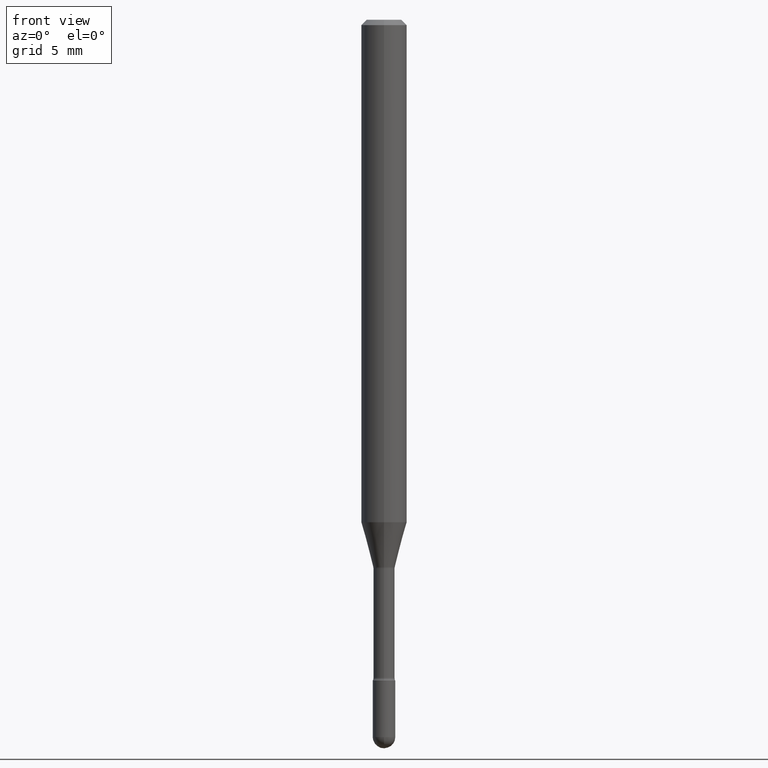
[diagram: clean part render]
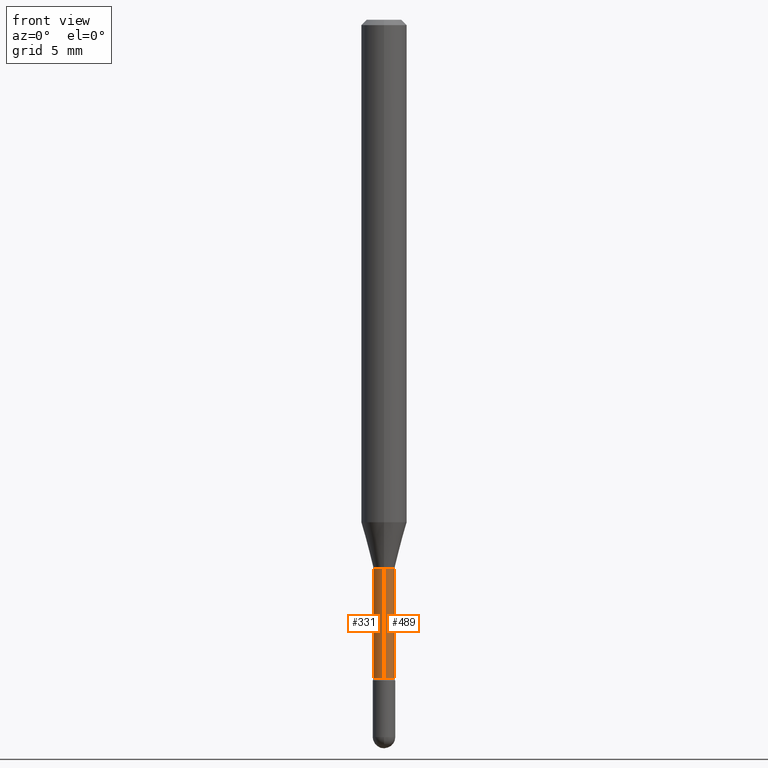
[diagram: same view with one multi-face feature highlighted, each face labeled with its STEP entity id]
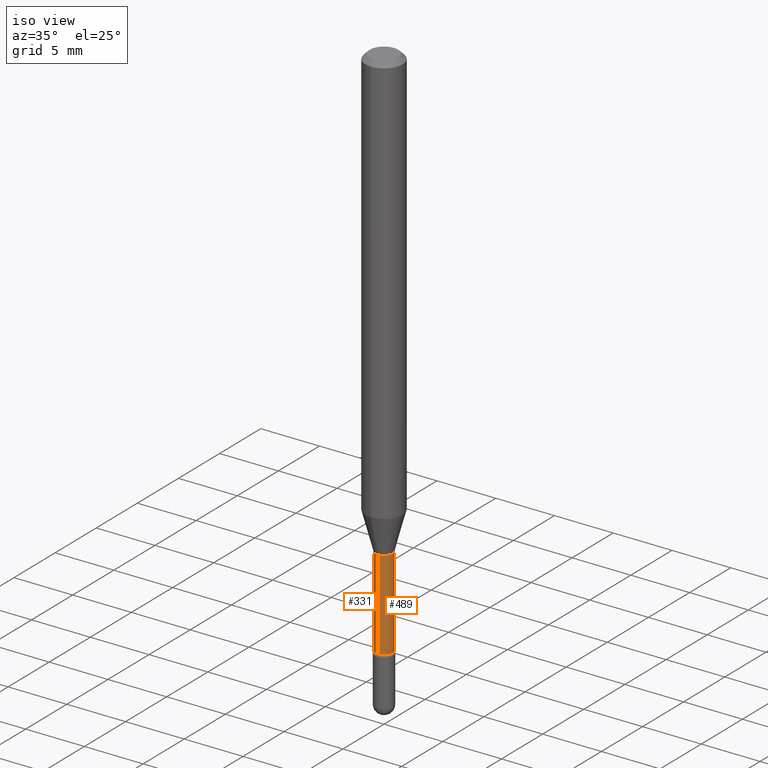
[diagram: same view with one multi-face feature highlighted, each face labeled with its STEP entity id]
A machine part, front view. The highlighted faces form ONE feature: a constant-radius fillet chain: 2 tangent blend faces with common blend radius 0.7404 mm. The faces share edges in the B-rep.
A second angle (iso view) of the same feature is appended — it is thin or edge-on in the first view.
Their STEP definitions:
[1] entity #489 (Cylinder):
#6 = VERTEX_POINT ( 'NONE', #444 ) ;
#10 = DIRECTION ( 'NONE',  ( -2.445454562768948999E-29, 3.491501736225811078E-15, 1.000000000000000000 ) ) ;
#37 = EDGE_CURVE ( 'NONE', #6, #315, #240, .T. ) ;
#53 = FACE_OUTER_BOUND ( 'NONE', #346, .T. ) ;
#57 = CARTESIAN_POINT ( 'NONE',  ( -1.169113584055446105E-44, 1.669184350826100908E-30, 4.780733988912460139E-16 ) ) ;
#84 = AXIS2_PLACEMENT_3D ( 'NONE', #57, #10, #183 ) ;
#96 = DIRECTION ( 'NONE',  ( -6.982962677686265922E-15, -1.000000000000000000, 0.000000000000000000 ) ) ;
#105 = CARTESIAN_POINT ( 'NONE',  ( 3.682792915418375153E-29, -5.258113585142194453E-15, -1.505974787463811193 ) ) ;
#117 = ORIENTED_EDGE ( 'NONE', *, *, #37, .F. ) ;
#139 = VECTOR ( 'NONE', #474, 39.37007874015748143 ) ;
#151 = CIRCLE ( 'NONE', #467, 0.02915000000000002311 ) ;
#167 = CIRCLE ( 'NONE', #527, 0.02914999999999999883 ) ;
#183 = DIRECTION ( 'NONE',  ( -6.982962677686265922E-15, -1.000000000000000000, 3.491501736225812656E-15 ) ) ;
#187 = ORIENTED_EDGE ( 'NONE', *, *, #459, .F. ) ;
#190 = VERTEX_POINT ( 'NONE', #300 ) ;
#192 = ORIENTED_EDGE ( 'NONE', *, *, #336, .T. ) ;
#207 = LINE ( 'NONE', #519, #139 ) ;
#240 = LINE ( 'NONE', #288, #426 ) ;
#267 = VERTEX_POINT ( 'NONE', #469 ) ;
#285 = CARTESIAN_POINT ( 'NONE',  ( 4.418407017082921517E-29, -6.308387817285686154E-15, -1.806783525791634704 ) ) ;
#288 = CARTESIAN_POINT ( 'NONE',  ( -2.035533620545547363E-16, -0.02915000000000001271, 5.798506745022284947E-16 ) ) ;
#300 = CARTESIAN_POINT ( 'NONE',  ( 2.136957277798944871E-16, 0.02914999999999371566, -1.806783525791634704 ) ) ;
#315 = VERTEX_POINT ( 'NONE', #432 ) ;
#318 = DIRECTION ( 'NONE',  ( -2.445454562768948999E-29, 3.491501736225811078E-15, 1.000000000000000000 ) ) ;
#336 = EDGE_CURVE ( 'NONE', #190, #267, #207, .T. ) ;
#346 = EDGE_LOOP ( 'NONE', ( #401, #192, #187, #117 ) ) ;
#401 = ORIENTED_EDGE ( 'NONE', *, *, #538, .T. ) ;
#409 = DIRECTION ( 'NONE',  ( -6.982962677686266711E-15, -1.000000000000000000, 0.000000000000000000 ) ) ;
#426 = VECTOR ( 'NONE', #318, 39.37007874015748143 ) ;
#432 = CARTESIAN_POINT ( 'NONE',  ( -2.035533620545178324E-16, -0.02915000000000525851, -1.505974787463811193 ) ) ;
#443 = CYLINDRICAL_SURFACE ( 'NONE', #84, 0.02915000000000001271 ) ;
#444 = CARTESIAN_POINT ( 'NONE',  ( -2.035533620545106341E-16, -0.02915000000000633404, -1.806783525791634704 ) ) ;
#459 = EDGE_CURVE ( 'NONE', #315, #267, #167, .T. ) ;
#462 = DIRECTION ( 'NONE',  ( -2.445454562768948999E-29, 3.491501736225811078E-15, 1.000000000000000000 ) ) ;
#467 = AXIS2_PLACEMENT_3D ( 'NONE', #285, #462, #409 ) ;
#469 = CARTESIAN_POINT ( 'NONE',  ( 2.071232074741134460E-16, 0.02914999999999473568, -1.505974787463811193 ) ) ;
#474 = DIRECTION ( 'NONE',  ( -2.445454562768948999E-29, 3.491501736225811078E-15, 1.000000000000000000 ) ) ;
#481 = DIRECTION ( 'NONE',  ( -2.445454562768948999E-29, 3.491501736225811078E-15, 1.000000000000000000 ) ) ;
#489 = ADVANCED_FACE ( 'NONE', ( #53 ), #443, .T. ) ;
#519 = CARTESIAN_POINT ( 'NONE',  ( 2.071232074740692452E-16, 0.02915000000000001271, 3.762961232802636318E-16 ) ) ;
#527 = AXIS2_PLACEMENT_3D ( 'NONE', #105, #481, #96 ) ;
#538 = EDGE_CURVE ( 'NONE', #6, #190, #151, .T. ) ;
[2] entity #331 (Cylinder):
#2 = ORIENTED_EDGE ( 'NONE', *, *, #336, .F. ) ;
#4 = DIRECTION ( 'NONE',  ( -6.982962677686265922E-15, -1.000000000000000000, 0.000000000000000000 ) ) ;
#6 = VERTEX_POINT ( 'NONE', #444 ) ;
#37 = EDGE_CURVE ( 'NONE', #6, #315, #240, .T. ) ;
#41 = DIRECTION ( 'NONE',  ( -6.982962677686265922E-15, -1.000000000000000000, 3.491501736225812656E-15 ) ) ;
#62 = DIRECTION ( 'NONE',  ( -2.445454562768948999E-29, 3.491501736225811078E-15, 1.000000000000000000 ) ) ;
#66 = ORIENTED_EDGE ( 'NONE', *, *, #293, .T. ) ;
#83 = CARTESIAN_POINT ( 'NONE',  ( -1.169113584055446105E-44, 1.669184350826100908E-30, 4.780733988912460139E-16 ) ) ;
#86 = AXIS2_PLACEMENT_3D ( 'NONE', #83, #334, #41 ) ;
#91 = DIRECTION ( 'NONE',  ( -2.445454562768948999E-29, 3.491501736225811078E-15, 1.000000000000000000 ) ) ;
#123 = CIRCLE ( 'NONE', #166, 0.02915000000000002311 ) ;
#139 = VECTOR ( 'NONE', #474, 39.37007874015748143 ) ;
#140 = CARTESIAN_POINT ( 'NONE',  ( 3.682792915418375153E-29, -5.258113585142194453E-15, -1.505974787463811193 ) ) ;
#141 = ORIENTED_EDGE ( 'NONE', *, *, #37, .T. ) ;
#166 = AXIS2_PLACEMENT_3D ( 'NONE', #248, #91, #424 ) ;
#171 = FACE_OUTER_BOUND ( 'NONE', #487, .T. ) ;
#190 = VERTEX_POINT ( 'NONE', #300 ) ;
#207 = LINE ( 'NONE', #519, #139 ) ;
#240 = LINE ( 'NONE', #288, #426 ) ;
#248 = CARTESIAN_POINT ( 'NONE',  ( 4.418407017082921517E-29, -6.308387817285686154E-15, -1.806783525791634704 ) ) ;
#267 = VERTEX_POINT ( 'NONE', #469 ) ;
#288 = CARTESIAN_POINT ( 'NONE',  ( -2.035533620545547363E-16, -0.02915000000000001271, 5.798506745022284947E-16 ) ) ;
#293 = EDGE_CURVE ( 'NONE', #190, #6, #123, .T. ) ;
#300 = CARTESIAN_POINT ( 'NONE',  ( 2.136957277798944871E-16, 0.02914999999999371566, -1.806783525791634704 ) ) ;
#315 = VERTEX_POINT ( 'NONE', #432 ) ;
#318 = DIRECTION ( 'NONE',  ( -2.445454562768948999E-29, 3.491501736225811078E-15, 1.000000000000000000 ) ) ;
#331 = ADVANCED_FACE ( 'NONE', ( #171 ), #513, .T. ) ;
#334 = DIRECTION ( 'NONE',  ( -2.445454562768948999E-29, 3.491501736225811078E-15, 1.000000000000000000 ) ) ;
#336 = EDGE_CURVE ( 'NONE', #190, #267, #207, .T. ) ;
#418 = CIRCLE ( 'NONE', #564, 0.02914999999999999883 ) ;
#424 = DIRECTION ( 'NONE',  ( -6.982962677686266711E-15, -1.000000000000000000, 0.000000000000000000 ) ) ;
#426 = VECTOR ( 'NONE', #318, 39.37007874015748143 ) ;
#432 = CARTESIAN_POINT ( 'NONE',  ( -2.035533620545178324E-16, -0.02915000000000525851, -1.505974787463811193 ) ) ;
#436 = EDGE_CURVE ( 'NONE', #267, #315, #418, .T. ) ;
#444 = CARTESIAN_POINT ( 'NONE',  ( -2.035533620545106341E-16, -0.02915000000000633404, -1.806783525791634704 ) ) ;
#469 = CARTESIAN_POINT ( 'NONE',  ( 2.071232074741134460E-16, 0.02914999999999473568, -1.505974787463811193 ) ) ;
#474 = DIRECTION ( 'NONE',  ( -2.445454562768948999E-29, 3.491501736225811078E-15, 1.000000000000000000 ) ) ;
#487 = EDGE_LOOP ( 'NONE', ( #2, #66, #141, #543 ) ) ;
#513 = CYLINDRICAL_SURFACE ( 'NONE', #86, 0.02915000000000001271 ) ;
#519 = CARTESIAN_POINT ( 'NONE',  ( 2.071232074740692452E-16, 0.02915000000000001271, 3.762961232802636318E-16 ) ) ;
#543 = ORIENTED_EDGE ( 'NONE', *, *, #436, .F. ) ;
#564 = AXIS2_PLACEMENT_3D ( 'NONE', #140, #62, #4 ) ;